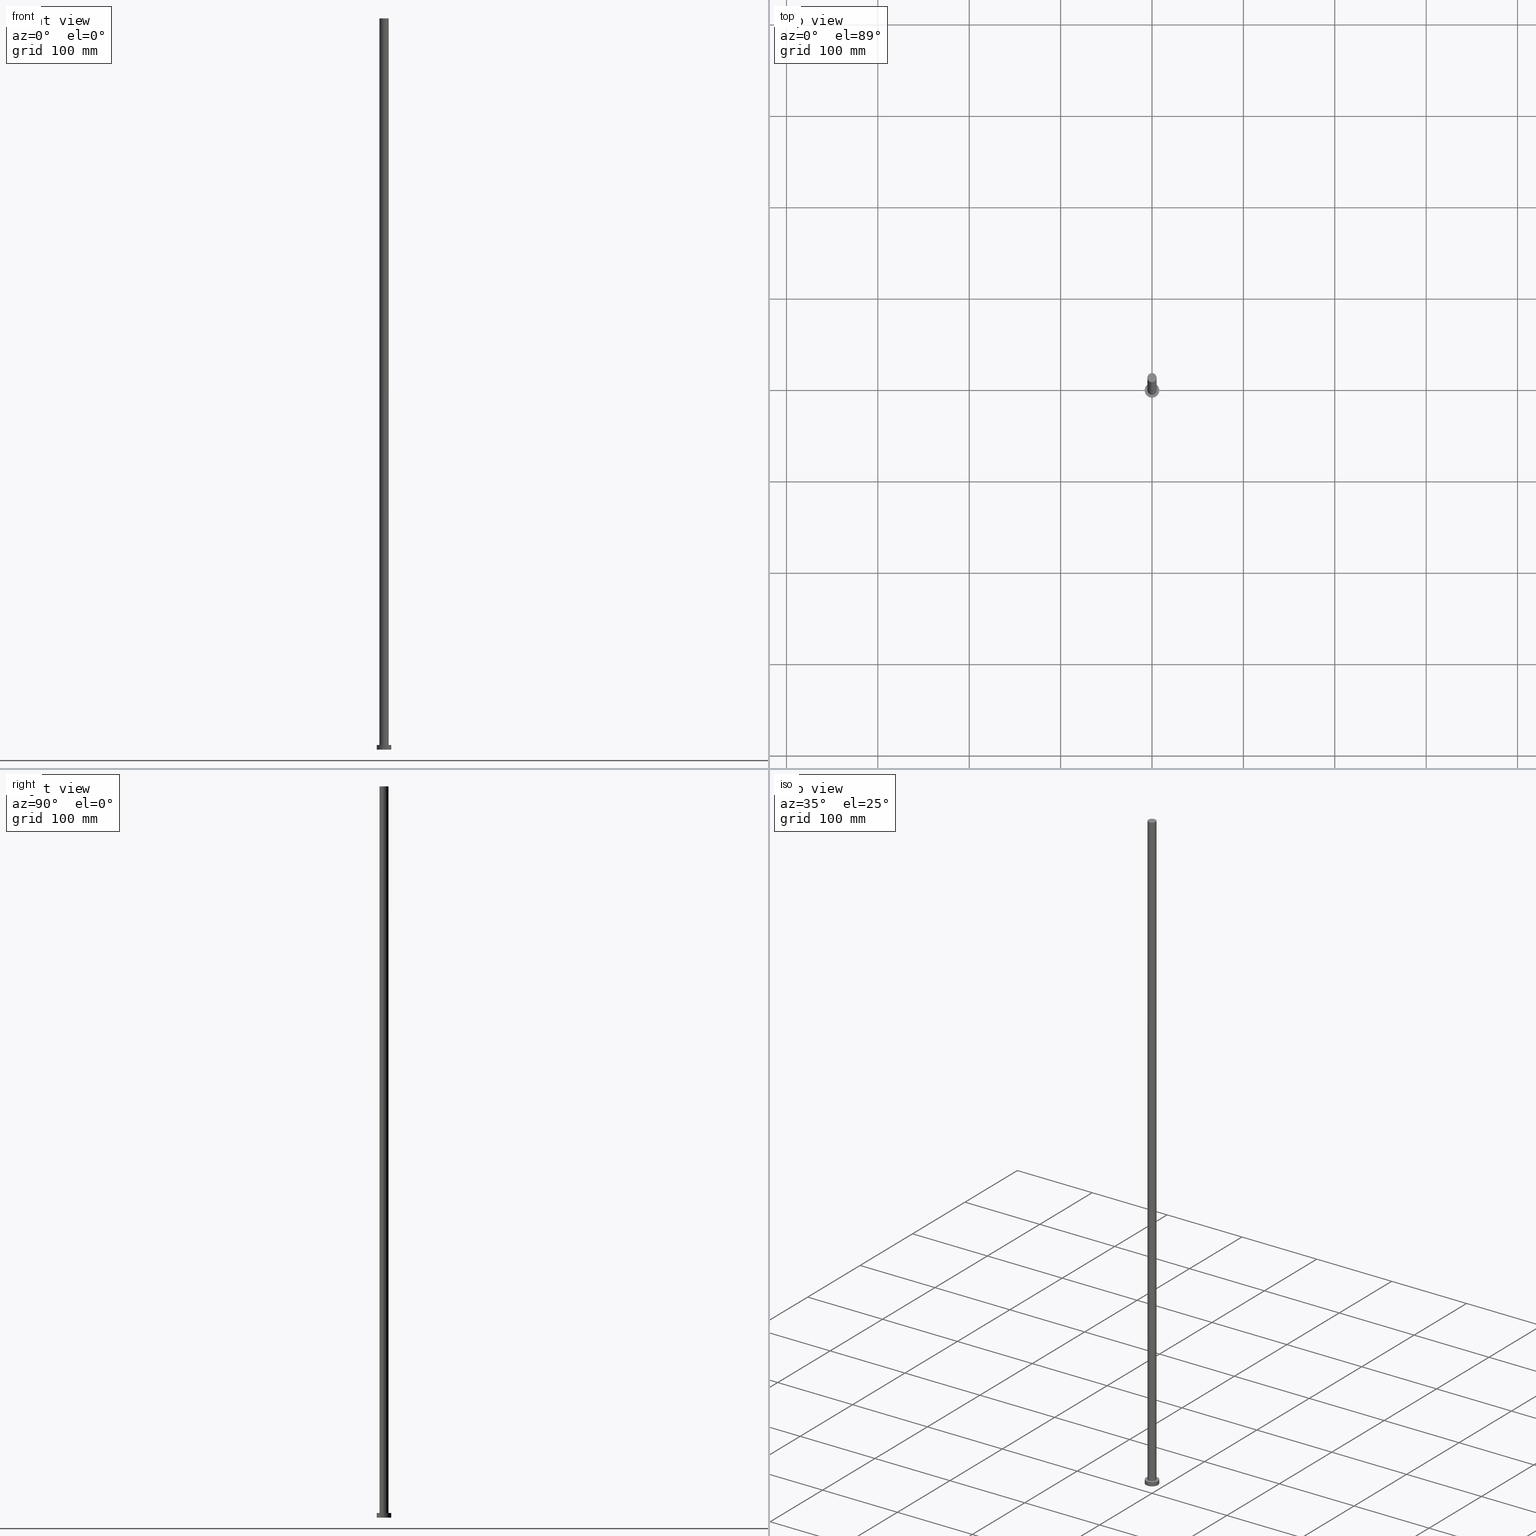
[diagram: canonical four-view strip — front | top / right | iso, engineering-drawing reading convention]
A machine part, canonical four-view strip (front | top / right | iso — engineering-drawing reading convention). The complete STEP part file that produces these views, byte-faithful:
ISO-10303-21;
HEADER;
FILE_DESCRIPTION (( 'STEP AP203' ),
    '1' );
FILE_NAME ('b297.STEP',
    '2023-02-13T09:58:18',
    ( '' ),
    ( '' ),
    'SwSTEP 2.0',
    'SolidWorks 2019',
    '' );
FILE_SCHEMA (( 'CONFIG_CONTROL_DESIGN' ));
ENDSEC;

DATA;
#1 = DATE_AND_TIME ( #110, #138 ) ;
#2 = APPROVAL ( #185, 'NEUR�EN�' ) ;
#3 = EDGE_LOOP ( 'NONE', ( #27, #87, #123, #241 ) ) ;
#4 = ORIENTED_EDGE ( 'NONE', *, *, #126, .T. ) ;
#5 = CALENDAR_DATE ( 2023, 13, 2 ) ;
#6 = DIRECTION ( 'NONE',  ( 0.000000000000000000, 0.000000000000000000, 1.000000000000000000 ) ) ;
#7 = CIRCLE ( 'NONE', #66, 8.000000000000000000 ) ;
#8 = VERTEX_POINT ( 'NONE', #57 ) ;
#9 = COORDINATED_UNIVERSAL_TIME_OFFSET ( 1, 0, .AHEAD. ) ;
#10 = CIRCLE ( 'NONE', #193, 5.000000000000000888 ) ;
#11 = PRODUCT_RELATED_PRODUCT_CATEGORY ( 'detail', '', ( #19 ) ) ;
#12 = PERSON ( 'NEUR�EN�', 'NEUR�EN�', 'NEUR�EN�', ('NEUR�EN�'), ('NEUR�EN�'), ('NEUR�EN�') ) ;
#13 = APPLICATION_PROTOCOL_DEFINITION ( 'international standard', 'config_control_design', 1994, #61 ) ;
#14 = PRODUCT_DEFINITION_FORMATION_WITH_SPECIFIED_SOURCE ( 'LIBOVOLN�', '', #19, .NOT_KNOWN. ) ;
#15 = DIRECTION ( 'NONE',  ( 0.000000000000000000, 0.000000000000000000, 1.000000000000000000 ) ) ;
#16 = PERSON_AND_ORGANIZATION_ROLE ( 'classification_officer' ) ;
#17 = DIRECTION ( 'NONE',  ( -1.000000000000000000, 0.000000000000000000, 0.000000000000000000 ) ) ;
#18 = ORIENTED_EDGE ( 'NONE', *, *, #188, .F. ) ;
#19 = PRODUCT ( 'b297', 'b297', '', ( #228 ) ) ;
#20 = CARTESIAN_POINT ( 'NONE',  ( 0.000000000000000000, 0.000000000000000000, 5.000000000000000000 ) ) ;
#21 = DIRECTION ( 'NONE',  ( 0.000000000000000000, 0.000000000000000000, 1.000000000000000000 ) ) ;
#22 = DIRECTION ( 'NONE',  ( 1.000000000000000000, 0.000000000000000000, 0.000000000000000000 ) ) ;
#23 = ORGANIZATION ( 'NEUR�EN�', 'NEUR�EN�', '' ) ;
#24 = COORDINATED_UNIVERSAL_TIME_OFFSET ( 1, 0, .AHEAD. ) ;
#25 = EDGE_CURVE ( 'NONE', #171, #107, #153, .T. ) ;
#26 = LINE ( 'NONE', #106, #177 ) ;
#27 = ORIENTED_EDGE ( 'NONE', *, *, #139, .F. ) ;
#28 = VERTEX_POINT ( 'NONE', #77 ) ;
#29 = PERSON_AND_ORGANIZATION ( #12, #23 ) ;
#30 = EDGE_LOOP ( 'NONE', ( #93, #18 ) ) ;
#31 = EDGE_CURVE ( 'NONE', #107, #91, #58, .T. ) ;
#32 = CARTESIAN_POINT ( 'NONE',  ( 0.000000000000000000, 0.000000000000000000, 5.000000000000000000 ) ) ;
#33 = EDGE_LOOP ( 'NONE', ( #194, #210 ) ) ;
#34 = DATE_TIME_ROLE ( 'classification_date' ) ;
#35 = CIRCLE ( 'NONE', #182, 5.000000000000000888 ) ;
#36 = CYLINDRICAL_SURFACE ( 'NONE', #47, 8.000000000000000000 ) ;
#37 = DIRECTION ( 'NONE',  ( -0.000000000000000000, -0.000000000000000000, -1.000000000000000000 ) ) ;
#38 = ADVANCED_FACE ( 'NONE', ( #137 ), #36, .T. ) ;
#39 = DIRECTION ( 'NONE',  ( 1.000000000000000000, 0.000000000000000000, -0.000000000000000000 ) ) ;
#40 = ORIENTED_EDGE ( 'NONE', *, *, #100, .T. ) ;
#41 = DIRECTION ( 'NONE',  ( -0.000000000000000000, -0.000000000000000000, -1.000000000000000000 ) ) ;
#42 = COORDINATED_UNIVERSAL_TIME_OFFSET ( 1, 0, .AHEAD. ) ;
#43 = DIRECTION ( 'NONE',  ( -1.000000000000000000, 0.000000000000000000, 0.000000000000000000 ) ) ;
#44 = CC_DESIGN_APPROVAL ( #157, ( #14 ) ) ;
#45 = PLANE ( 'NONE',  #244 ) ;
#46 = DIRECTION ( 'NONE',  ( 0.000000000000000000, 0.000000000000000000, 1.000000000000000000 ) ) ;
#47 = AXIS2_PLACEMENT_3D ( 'NONE', #217, #235, #17 ) ;
#48 = APPLICATION_PROTOCOL_DEFINITION ( 'international standard', 'config_control_design', 1994, #227 ) ;
#49 = ORIENTED_EDGE ( 'NONE', *, *, #186, .T. ) ;
#50 = VERTEX_POINT ( 'NONE', #215 ) ;
#51 = CC_DESIGN_DATE_AND_TIME_ASSIGNMENT ( #78, #34, ( #204 ) ) ;
#52 = ORIENTED_EDGE ( 'NONE', *, *, #112, .T. ) ;
#53 = CC_DESIGN_APPROVAL ( #2, ( #202 ) ) ;
#54 = PERSON_AND_ORGANIZATION_ROLE ( 'creator' ) ;
#55 = ADVANCED_FACE ( 'NONE', ( #197 ), #148, .T. ) ;
#56 = DATE_AND_TIME ( #224, #98 ) ;
#57 = CARTESIAN_POINT ( 'NONE',  ( 8.000000000000000000, 9.797174393178825657E-16, 0.000000000000000000 ) ) ;
#58 = LINE ( 'NONE', #214, #247 ) ;
#59 = MANIFOLD_SOLID_BREP ( 'P�idat vysunut�m3', #165 ) ;
#60 = CC_DESIGN_PERSON_AND_ORGANIZATION_ASSIGNMENT ( #118, #159, ( #14 ) ) ;
#61 = APPLICATION_CONTEXT ( 'configuration controlled 3d designs of mechanical parts and assemblies' ) ;
#62 = ORIENTED_EDGE ( 'NONE', *, *, #186, .F. ) ;
#63 = FACE_OUTER_BOUND ( 'NONE', #3, .T. ) ;
#64 = DIRECTION ( 'NONE',  ( 1.000000000000000000, 0.000000000000000000, 0.000000000000000000 ) ) ;
#65 = DIRECTION ( 'NONE',  ( -0.000000000000000000, -0.000000000000000000, -1.000000000000000000 ) ) ;
#66 = AXIS2_PLACEMENT_3D ( 'NONE', #82, #161, #199 ) ;
#67 = PLANE ( 'NONE',  #233 ) ;
#68 = DIRECTION ( 'NONE',  ( 1.000000000000000000, 0.000000000000000000, -0.000000000000000000 ) ) ;
#69 = APPROVAL_DATE_TIME ( #237, #97 ) ;
#70 = APPROVAL_DATE_TIME ( #1, #2 ) ;
#71 = AXIS2_PLACEMENT_3D ( 'NONE', #176, #178, #74 ) ;
#72 = CC_DESIGN_PERSON_AND_ORGANIZATION_ASSIGNMENT ( #181, #196, ( #14 ) ) ;
#73 = CALENDAR_DATE ( 2023, 13, 2 ) ;
#74 = DIRECTION ( 'NONE',  ( 1.000000000000000000, 0.000000000000000000, 0.000000000000000000 ) ) ;
#75 = ORIENTED_EDGE ( 'NONE', *, *, #112, .F. ) ;
#76 = CC_DESIGN_APPROVAL ( #97, ( #204 ) ) ;
#77 = CARTESIAN_POINT ( 'NONE',  ( 5.000000000000000888, 6.123233995736767268E-16, 5.000000000000000000 ) ) ;
#78 = DATE_AND_TIME ( #73, #115 ) ;
#79 = DIRECTION ( 'NONE',  ( 1.000000000000000000, 0.000000000000000000, 0.000000000000000000 ) ) ;
#80 = APPROVAL_ROLE ( '' ) ;
#81 = CARTESIAN_POINT ( 'NONE',  ( 0.000000000000000000, 0.000000000000000000, 800.0000000000000000 ) ) ;
#82 = CARTESIAN_POINT ( 'NONE',  ( 0.000000000000000000, 0.000000000000000000, 0.000000000000000000 ) ) ;
#83 = LINE ( 'NONE', #147, #207 ) ;
#84 = VERTEX_POINT ( 'NONE', #248 ) ;
#85 = CARTESIAN_POINT ( 'NONE',  ( 0.000000000000000000, 0.000000000000000000, 0.000000000000000000 ) ) ;
#86 = AXIS2_PLACEMENT_3D ( 'NONE', #232, #65, #124 ) ;
#87 = ORIENTED_EDGE ( 'NONE', *, *, #172, .F. ) ;
#88 = DIRECTION ( 'NONE',  ( 1.000000000000000000, 0.000000000000000000, -0.000000000000000000 ) ) ;
#89 = ORIENTED_EDGE ( 'NONE', *, *, #100, .F. ) ;
#90 = AXIS2_PLACEMENT_3D ( 'NONE', #85, #99, #143 ) ;
#91 = VERTEX_POINT ( 'NONE', #216 ) ;
#92 = CC_DESIGN_PERSON_AND_ORGANIZATION_ASSIGNMENT ( #144, #164, ( #19 ) ) ;
#93 = ORIENTED_EDGE ( 'NONE', *, *, #231, .F. ) ;
#94 = DESIGN_CONTEXT ( 'detailed design', #227, 'design' ) ;
#95 = APPROVAL_DATE_TIME ( #141, #157 ) ;
#96 = EDGE_LOOP ( 'NONE', ( #62, #209 ) ) ;
#97 = APPROVAL ( #190, 'NEUR�EN�' ) ;
#98 = LOCAL_TIME ( 10, 58, 18.00000000000000000, #134 ) ;
#99 = DIRECTION ( 'NONE',  ( 0.000000000000000000, 0.000000000000000000, 1.000000000000000000 ) ) ;
#100 = EDGE_CURVE ( 'NONE', #84, #8, #254, .T. ) ;
#101 = ORIENTED_EDGE ( 'NONE', *, *, #31, .F. ) ;
#102 = DIRECTION ( 'NONE',  ( 0.000000000000000000, 0.000000000000000000, 1.000000000000000000 ) ) ;
#103 = SHAPE_DEFINITION_REPRESENTATION ( #156, #175 ) ;
#104 = DIRECTION ( 'NONE',  ( 1.000000000000000000, 0.000000000000000000, 0.000000000000000000 ) ) ;
#105 = CARTESIAN_POINT ( 'NONE',  ( 5.000000000000000888, 6.123233995736767268E-16, 800.0000000000000000 ) ) ;
#106 = CARTESIAN_POINT ( 'NONE',  ( -8.000000000000000000, 0.000000000000000000, 5.000000000000000000 ) ) ;
#107 = VERTEX_POINT ( 'NONE', #120 ) ;
#108 = CIRCLE ( 'NONE', #133, 5.000000000000000888 ) ;
#109 = EDGE_LOOP ( 'NONE', ( #52, #154 ) ) ;
#110 = CALENDAR_DATE ( 2023, 13, 2 ) ;
#111 = DIRECTION ( 'NONE',  ( -0.000000000000000000, -0.000000000000000000, -1.000000000000000000 ) ) ;
#112 = EDGE_CURVE ( 'NONE', #50, #84, #174, .T. ) ;
#113 = AXIS2_PLACEMENT_3D ( 'NONE', #245, #246, #140 ) ;
#114 = ORIENTED_EDGE ( 'NONE', *, *, #25, .F. ) ;
#115 = LOCAL_TIME ( 10, 58, 18.00000000000000000, #9 ) ;
#116 = PERSON_AND_ORGANIZATION ( #12, #23 ) ;
#117 = CIRCLE ( 'NONE', #149, 8.000000000000000000 ) ;
#118 = PERSON_AND_ORGANIZATION ( #12, #23 ) ;
#119 = LOCAL_TIME ( 10, 58, 18.00000000000000000, #121 ) ;
#120 = CARTESIAN_POINT ( 'NONE',  ( -5.000000000000000888, 0.000000000000000000, 800.0000000000000000 ) ) ;
#121 = COORDINATED_UNIVERSAL_TIME_OFFSET ( 1, 0, .AHEAD. ) ;
#122 = DIRECTION ( 'NONE',  ( 0.000000000000000000, 0.000000000000000000, 1.000000000000000000 ) ) ;
#123 = ORIENTED_EDGE ( 'NONE', *, *, #31, .T. ) ;
#124 = DIRECTION ( 'NONE',  ( -1.000000000000000000, 0.000000000000000000, 0.000000000000000000 ) ) ;
#125 = AXIS2_PLACEMENT_3D ( 'NONE', #206, #208, #203 ) ;
#126 = EDGE_CURVE ( 'NONE', #8, #229, #7, .T. ) ;
#127 = CYLINDRICAL_SURFACE ( 'NONE', #160, 5.000000000000000888 ) ;
#128 = FACE_OUTER_BOUND ( 'NONE', #129, .T. ) ;
#129 = EDGE_LOOP ( 'NONE', ( #131, #40, #4, #179 ) ) ;
#130 = CYLINDRICAL_SURFACE ( 'NONE', #125, 8.000000000000000000 ) ;
#131 = ORIENTED_EDGE ( 'NONE', *, *, #132, .F. ) ;
#132 = EDGE_CURVE ( 'NONE', #84, #50, #117, .T. ) ;
#133 = AXIS2_PLACEMENT_3D ( 'NONE', #167, #102, #180 ) ;
#134 = COORDINATED_UNIVERSAL_TIME_OFFSET ( 1, 0, .AHEAD. ) ;
#135 = EDGE_LOOP ( 'NONE', ( #114, #151, #225, #101 ) ) ;
#136 = PERSON_AND_ORGANIZATION ( #12, #23 ) ;
#137 = FACE_OUTER_BOUND ( 'NONE', #221, .T. ) ;
#138 = LOCAL_TIME ( 10, 58, 18.00000000000000000, #24 ) ;
#139 = EDGE_CURVE ( 'NONE', #171, #28, #83, .T. ) ;
#140 = DIRECTION ( 'NONE',  ( 1.000000000000000000, 0.000000000000000000, 0.000000000000000000 ) ) ;
#141 = DATE_AND_TIME ( #5, #119 ) ;
#142 = CARTESIAN_POINT ( 'NONE',  ( 0.000000000000000000, 0.000000000000000000, 800.0000000000000000 ) ) ;
#143 = DIRECTION ( 'NONE',  ( 1.000000000000000000, 0.000000000000000000, 0.000000000000000000 ) ) ;
#144 = PERSON_AND_ORGANIZATION ( #12, #23 ) ;
#145 = ADVANCED_FACE ( 'NONE', ( #230 ), #67, .F. ) ;
#146 = AXIS2_PLACEMENT_3D ( 'NONE', #20, #21, #104 ) ;
#147 = CARTESIAN_POINT ( 'NONE',  ( 5.000000000000000888, 6.123233995736767268E-16, 800.0000000000000000 ) ) ;
#148 = PLANE ( 'NONE',  #184 ) ;
#149 = AXIS2_PLACEMENT_3D ( 'NONE', #253, #122, #79 ) ;
#150 = CC_DESIGN_DATE_AND_TIME_ASSIGNMENT ( #56, #211, ( #202 ) ) ;
#151 = ORIENTED_EDGE ( 'NONE', *, *, #139, .T. ) ;
#152 = ORIENTED_EDGE ( 'NONE', *, *, #243, .T. ) ;
#153 = CIRCLE ( 'NONE', #113, 5.000000000000000888 ) ;
#154 = ORIENTED_EDGE ( 'NONE', *, *, #132, .T. ) ;
#155 =( GEOMETRIC_REPRESENTATION_CONTEXT ( 3 ) GLOBAL_UNCERTAINTY_ASSIGNED_CONTEXT ( ( #238 ) ) GLOBAL_UNIT_ASSIGNED_CONTEXT ( ( #187, #169, #255 ) ) REPRESENTATION_CONTEXT ( 'NONE', 'WORKASPACE' ) );
#156 = PRODUCT_DEFINITION_SHAPE ( 'NONE', 'NONE',  #202 ) ;
#157 = APPROVAL ( #189, 'NEUR�EN�' ) ;
#158 = DIRECTION ( 'NONE',  ( 0.000000000000000000, 0.000000000000000000, 1.000000000000000000 ) ) ;
#159 = PERSON_AND_ORGANIZATION_ROLE ( 'creator' ) ;
#160 = AXIS2_PLACEMENT_3D ( 'NONE', #142, #183, #43 ) ;
#161 = DIRECTION ( 'NONE',  ( 0.000000000000000000, 0.000000000000000000, 1.000000000000000000 ) ) ;
#162 = CYLINDRICAL_SURFACE ( 'NONE', #86, 5.000000000000000888 ) ;
#163 = CALENDAR_DATE ( 2023, 13, 2 ) ;
#164 = PERSON_AND_ORGANIZATION_ROLE ( 'design_owner' ) ;
#165 = CLOSED_SHELL ( 'NONE', ( #213, #226, #38, #223, #145, #192, #55 ) ) ;
#166 = FACE_OUTER_BOUND ( 'NONE', #109, .T. ) ;
#167 = CARTESIAN_POINT ( 'NONE',  ( 0.000000000000000000, 0.000000000000000000, 5.000000000000000000 ) ) ;
#168 = LOCAL_TIME ( 10, 58, 18.00000000000000000, #42 ) ;
#169 =( NAMED_UNIT ( * ) PLANE_ANGLE_UNIT ( ) SI_UNIT ( $, .RADIAN. ) );
#170 = CC_DESIGN_PERSON_AND_ORGANIZATION_ASSIGNMENT ( #136, #54, ( #202 ) ) ;
#171 = VERTEX_POINT ( 'NONE', #105 ) ;
#172 = EDGE_CURVE ( 'NONE', #107, #171, #35, .T. ) ;
#173 = PERSON_AND_ORGANIZATION ( #12, #23 ) ;
#174 = CIRCLE ( 'NONE', #146, 8.000000000000000000 ) ;
#175 = ADVANCED_BREP_SHAPE_REPRESENTATION ( 'b297', ( #59, #71 ), #155 ) ;
#176 = CARTESIAN_POINT ( 'NONE',  ( 0.000000000000000000, 0.000000000000000000, 0.000000000000000000 ) ) ;
#177 = VECTOR ( 'NONE', #111, 1000.000000000000000 ) ;
#178 = DIRECTION ( 'NONE',  ( 0.000000000000000000, 0.000000000000000000, 1.000000000000000000 ) ) ;
#179 = ORIENTED_EDGE ( 'NONE', *, *, #243, .F. ) ;
#180 = DIRECTION ( 'NONE',  ( 1.000000000000000000, 0.000000000000000000, 0.000000000000000000 ) ) ;
#181 = PERSON_AND_ORGANIZATION ( #12, #23 ) ;
#182 = AXIS2_PLACEMENT_3D ( 'NONE', #81, #158, #64 ) ;
#183 = DIRECTION ( 'NONE',  ( -0.000000000000000000, -0.000000000000000000, -1.000000000000000000 ) ) ;
#184 = AXIS2_PLACEMENT_3D ( 'NONE', #236, #218, #68 ) ;
#185 = APPROVAL_STATUS ( 'not_yet_approved' ) ;
#186 = EDGE_CURVE ( 'NONE', #229, #8, #240, .T. ) ;
#187 =( LENGTH_UNIT ( ) NAMED_UNIT ( * ) SI_UNIT ( .MILLI., .METRE. ) );
#188 = EDGE_CURVE ( 'NONE', #28, #91, #108, .T. ) ;
#189 = APPROVAL_STATUS ( 'not_yet_approved' ) ;
#190 = APPROVAL_STATUS ( 'not_yet_approved' ) ;
#191 = SECURITY_CLASSIFICATION_LEVEL ( 'unclassified' ) ;
#192 = ADVANCED_FACE ( 'NONE', ( #63 ), #127, .T. ) ;
#193 = AXIS2_PLACEMENT_3D ( 'NONE', #32, #6, #22 ) ;
#194 = ORIENTED_EDGE ( 'NONE', *, *, #172, .T. ) ;
#195 = DIRECTION ( 'NONE',  ( -0.000000000000000000, -0.000000000000000000, -1.000000000000000000 ) ) ;
#196 = PERSON_AND_ORGANIZATION_ROLE ( 'design_supplier' ) ;
#197 = FACE_OUTER_BOUND ( 'NONE', #33, .T. ) ;
#198 = APPROVAL_ROLE ( '' ) ;
#199 = DIRECTION ( 'NONE',  ( 1.000000000000000000, 0.000000000000000000, 0.000000000000000000 ) ) ;
#200 = FACE_BOUND ( 'NONE', #30, .T. ) ;
#201 = CARTESIAN_POINT ( 'NONE',  ( 0.000000000000000000, 0.000000000000000000, 5.000000000000000000 ) ) ;
#202 = PRODUCT_DEFINITION ( 'NEZN�M�', '', #14, #94 ) ;
#203 = DIRECTION ( 'NONE',  ( -1.000000000000000000, 0.000000000000000000, 0.000000000000000000 ) ) ;
#204 = SECURITY_CLASSIFICATION ( '', '', #191 ) ;
#205 = CARTESIAN_POINT ( 'NONE',  ( -8.000000000000000000, 0.000000000000000000, 0.000000000000000000 ) ) ;
#206 = CARTESIAN_POINT ( 'NONE',  ( 0.000000000000000000, 0.000000000000000000, 5.000000000000000000 ) ) ;
#207 = VECTOR ( 'NONE', #195, 1000.000000000000000 ) ;
#208 = DIRECTION ( 'NONE',  ( -0.000000000000000000, -0.000000000000000000, -1.000000000000000000 ) ) ;
#209 = ORIENTED_EDGE ( 'NONE', *, *, #126, .F. ) ;
#210 = ORIENTED_EDGE ( 'NONE', *, *, #25, .T. ) ;
#211 = DATE_TIME_ROLE ( 'creation_date' ) ;
#212 = APPROVAL_PERSON_ORGANIZATION ( #29, #2, #239 ) ;
#213 = ADVANCED_FACE ( 'NONE', ( #252 ), #162, .T. ) ;
#214 = CARTESIAN_POINT ( 'NONE',  ( -5.000000000000000888, 0.000000000000000000, 800.0000000000000000 ) ) ;
#215 = CARTESIAN_POINT ( 'NONE',  ( -8.000000000000000000, 0.000000000000000000, 5.000000000000000000 ) ) ;
#216 = CARTESIAN_POINT ( 'NONE',  ( -5.000000000000000888, 0.000000000000000000, 5.000000000000000000 ) ) ;
#217 = CARTESIAN_POINT ( 'NONE',  ( 0.000000000000000000, 0.000000000000000000, 5.000000000000000000 ) ) ;
#218 = DIRECTION ( 'NONE',  ( 0.000000000000000000, 0.000000000000000000, 1.000000000000000000 ) ) ;
#219 = CARTESIAN_POINT ( 'NONE',  ( 0.000000000000000000, 0.000000000000000000, 0.000000000000000000 ) ) ;
#220 = APPROVAL_PERSON_ORGANIZATION ( #116, #157, #80 ) ;
#221 = EDGE_LOOP ( 'NONE', ( #89, #75, #152, #49 ) ) ;
#222 = CC_DESIGN_SECURITY_CLASSIFICATION ( #204, ( #14 ) ) ;
#223 = ADVANCED_FACE ( 'NONE', ( #200, #166 ), #45, .T. ) ;
#224 = CALENDAR_DATE ( 2023, 13, 2 ) ;
#225 = ORIENTED_EDGE ( 'NONE', *, *, #188, .T. ) ;
#226 = ADVANCED_FACE ( 'NONE', ( #128 ), #130, .T. ) ;
#227 = APPLICATION_CONTEXT ( 'configuration controlled 3d designs of mechanical parts and assemblies' ) ;
#228 = MECHANICAL_CONTEXT ( 'NONE', #61, 'mechanical' ) ;
#229 = VERTEX_POINT ( 'NONE', #205 ) ;
#230 = FACE_OUTER_BOUND ( 'NONE', #96, .T. ) ;
#231 = EDGE_CURVE ( 'NONE', #91, #28, #10, .T. ) ;
#232 = CARTESIAN_POINT ( 'NONE',  ( 0.000000000000000000, 0.000000000000000000, 800.0000000000000000 ) ) ;
#233 = AXIS2_PLACEMENT_3D ( 'NONE', #219, #15, #39 ) ;
#234 = CC_DESIGN_PERSON_AND_ORGANIZATION_ASSIGNMENT ( #173, #16, ( #204 ) ) ;
#235 = DIRECTION ( 'NONE',  ( -0.000000000000000000, -0.000000000000000000, -1.000000000000000000 ) ) ;
#236 = CARTESIAN_POINT ( 'NONE',  ( 0.000000000000000000, 0.000000000000000000, 800.0000000000000000 ) ) ;
#237 = DATE_AND_TIME ( #163, #168 ) ;
#238 = UNCERTAINTY_MEASURE_WITH_UNIT (LENGTH_MEASURE( 1.000000000000000082E-05 ), #187, 'distance_accuracy_value', 'NONE');
#239 = APPROVAL_ROLE ( '' ) ;
#240 = CIRCLE ( 'NONE', #90, 8.000000000000000000 ) ;
#241 = ORIENTED_EDGE ( 'NONE', *, *, #231, .T. ) ;
#242 = VECTOR ( 'NONE', #41, 1000.000000000000000 ) ;
#243 = EDGE_CURVE ( 'NONE', #50, #229, #26, .T. ) ;
#244 = AXIS2_PLACEMENT_3D ( 'NONE', #201, #46, #88 ) ;
#245 = CARTESIAN_POINT ( 'NONE',  ( 0.000000000000000000, 0.000000000000000000, 800.0000000000000000 ) ) ;
#246 = DIRECTION ( 'NONE',  ( 0.000000000000000000, 0.000000000000000000, 1.000000000000000000 ) ) ;
#247 = VECTOR ( 'NONE', #37, 1000.000000000000000 ) ;
#248 = CARTESIAN_POINT ( 'NONE',  ( 8.000000000000000000, 9.797174393178825657E-16, 5.000000000000000000 ) ) ;
#249 = PERSON_AND_ORGANIZATION ( #12, #23 ) ;
#250 = CARTESIAN_POINT ( 'NONE',  ( 8.000000000000000000, 9.797174393178825657E-16, 5.000000000000000000 ) ) ;
#251 = APPROVAL_PERSON_ORGANIZATION ( #249, #97, #198 ) ;
#252 = FACE_OUTER_BOUND ( 'NONE', #135, .T. ) ;
#253 = CARTESIAN_POINT ( 'NONE',  ( 0.000000000000000000, 0.000000000000000000, 5.000000000000000000 ) ) ;
#254 = LINE ( 'NONE', #250, #242 ) ;
#255 =( NAMED_UNIT ( * ) SI_UNIT ( $, .STERADIAN. ) SOLID_ANGLE_UNIT ( ) );
ENDSEC;
END-ISO-10303-21;
